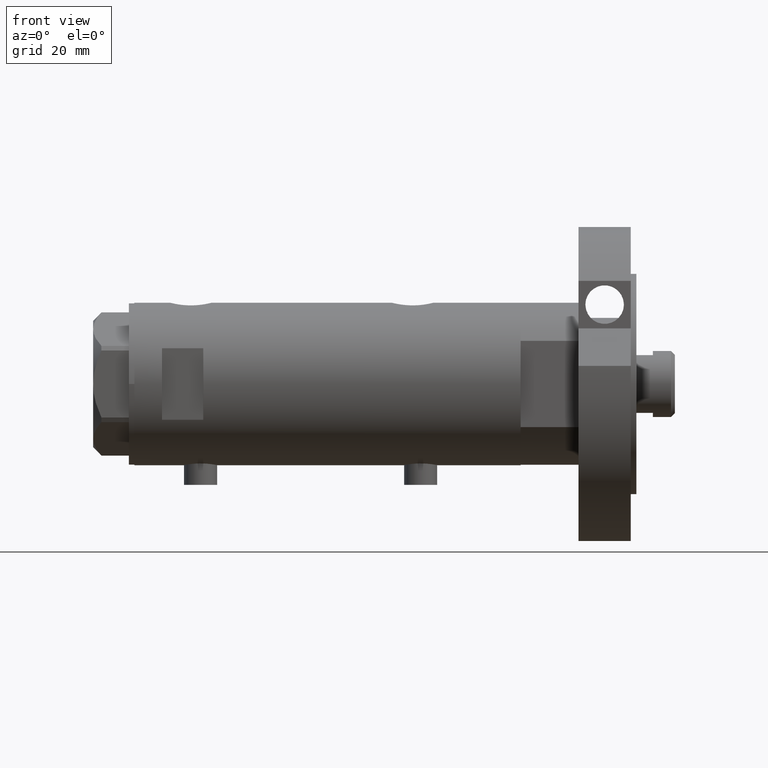
[diagram: clean part render]
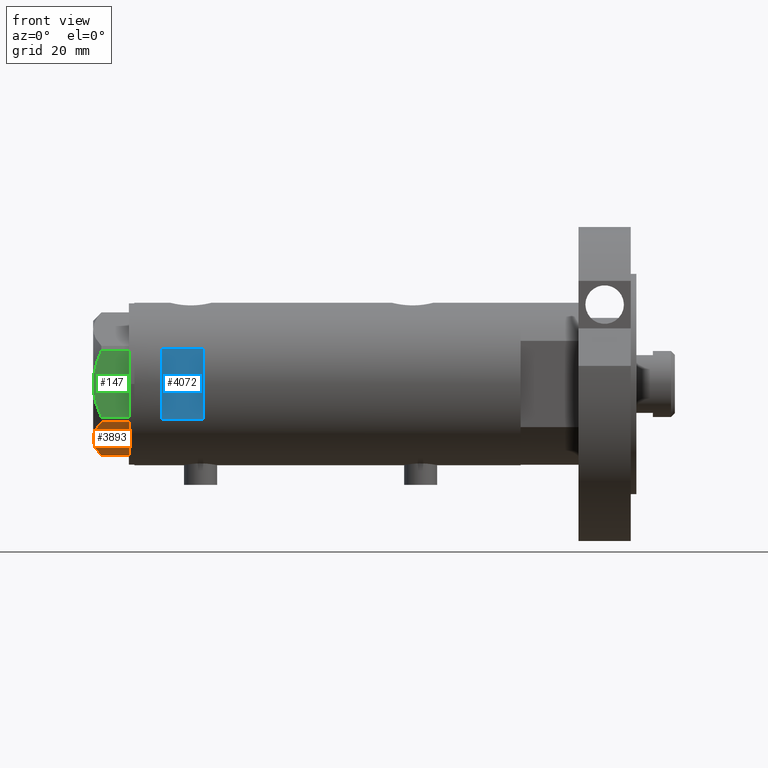
[diagram: same view with three faces highlighted in distinct colors, each labeled with its STEP entity id]
A machine part, front view with three faces highlighted in distinct colors.
Their STEP definitions:

[orange] entity #3893 — the highlighted planar face has unit normal (0, 0.5, 0.866).
#122 = CARTESIAN_POINT ( 'NONE',  ( -7.836767740116584058, 22.03355241838984924, 12.63731396715694899 ) ) ;
#184 = CARTESIAN_POINT ( 'NONE',  ( -11.04134848610939557, 20.18338686205100885, 13.00000000000010125 ) ) ;
#200 = VECTOR ( 'NONE', #262, 1000.000000000000000 ) ;
#262 = DIRECTION ( 'NONE',  ( 0.000000000000000000, 0.000000000000000000, 1.000000000000000000 ) ) ;
#331 = EDGE_CURVE ( 'NONE', #1766, #3645, #883, .T. ) ;
#351 = VERTEX_POINT ( 'NONE', #678 ) ;
#451 = CARTESIAN_POINT ( 'NONE',  ( -15.11535457301031649, 17.83125835109857249, 12.70765172847700519 ) ) ;
#576 = CARTESIAN_POINT ( 'NONE',  ( 0.000000000000000000, 26.55811238272274366, 0.000000000000000000 ) ) ;
#654 = CARTESIAN_POINT ( 'NONE',  ( -11.50000000000004441, 19.91858428704211548, 13.00000000000000000 ) ) ;
#678 = CARTESIAN_POINT ( 'NONE',  ( -22.03005154776141339, 13.83905619136132792, 0.000000000000000000 ) ) ;
#883 = B_SPLINE_CURVE_WITH_KNOTS ( 'NONE', 3,
 ( #2816, #5610, #451, #1830, #4211, #3289, #6117, #2879, #5182, #4301 ),
 .UNSPECIFIED., .F., .F.,
 ( 4, 2, 2, 2, 4 ),
 ( 0.01376519981810312397, 0.01998941321701587850, 0.02154546656674406757, 0.02310151991647225664, 0.02621362661592864171 ),
 .UNSPECIFIED. ) ;
#1011 = CARTESIAN_POINT ( 'NONE',  ( -2.626494320835643048, 25.04170517956326236, 10.87778242614345814 ) ) ;
#1033 = ORIENTED_EDGE ( 'NONE', *, *, #331, .F. ) ;
#1047 = VERTEX_POINT ( 'NONE', #1716 ) ;
#1235 = DIRECTION ( 'NONE',  ( 0.5000000000000008882, -0.8660254037844381525, 0.000000000000000000 ) ) ;
#1442 = EDGE_CURVE ( 'NONE', #3783, #1047, #2539, .T. ) ;
#1465 = CARTESIAN_POINT ( 'NONE',  ( -0.9699484522384476115, 25.99811238272281599, 9.983800287807556018 ) ) ;
#1566 = DIRECTION ( 'NONE',  ( 0.000000000000000000, 0.000000000000000000, -1.000000000000000000 ) ) ;
#1603 = LINE ( 'NONE', #4491, #200 ) ;
#1688 = CARTESIAN_POINT ( 'NONE',  ( 0.000000000000000000, 26.55811238272274366, 13.00000000000000000 ) ) ;
#1716 = CARTESIAN_POINT ( 'NONE',  ( -0.9699484522385893870, 25.99811238272273073, 0.000000000000000000 ) ) ;
#1766 = VERTEX_POINT ( 'NONE', #4344 ) ;
#1786 = EDGE_CURVE ( 'NONE', #3783, #1766, #4984, .T. ) ;
#1829 = VECTOR ( 'NONE', #1566, 1000.000000000000000 ) ;
#1830 = CARTESIAN_POINT ( 'NONE',  ( -17.32831362639716843, 16.55360584592005679, 12.04068176582934235 ) ) ;
#1897 = CARTESIAN_POINT ( 'NONE',  ( -0.9699484522384476115, 25.99811238272281599, 9.983800287807556018 ) ) ;
#2400 = CARTESIAN_POINT ( 'NONE',  ( -9.197898616902921987, 21.24770314027493612, 12.85271263895580596 ) ) ;
#2528 = CARTESIAN_POINT ( 'NONE',  ( -9.656518383329851574, 20.98291889467267879, 12.90784227772844162 ) ) ;
#2539 = LINE ( 'NONE', #5382, #1829 ) ;
#2650 = ORIENTED_EDGE ( 'NONE', *, *, #1442, .T. ) ;
#2665 = ORIENTED_EDGE ( 'NONE', *, *, #1786, .F. ) ;
#2816 = CARTESIAN_POINT ( 'NONE',  ( -11.50000000000004441, 19.91858428704211548, 13.00000000000000000 ) ) ;
#2879 = CARTESIAN_POINT ( 'NONE',  ( -20.35958612119325650, 14.80349985506242838, 10.84420102443839085 ) ) ;
#2886 = CARTESIAN_POINT ( 'NONE',  ( -10.58093321976963175, 20.44920774001128194, 12.98168640760950510 ) ) ;
#3032 = AXIS2_PLACEMENT_3D ( 'NONE', #1688, #1235, #4078 ) ;
#3289 = CARTESIAN_POINT ( 'NONE',  ( -18.64279229058393739, 15.79469123530780372, 11.57055225522972286 ) ) ;
#3436 = LINE ( 'NONE', #576, #5228 ) ;
#3473 = DIRECTION ( 'NONE',  ( -0.8660254037844380415, -0.5000000000000008882, 0.000000000000000000 ) ) ;
#3645 = VERTEX_POINT ( 'NONE', #5583 ) ;
#3783 = VERTEX_POINT ( 'NONE', #1897 ) ;
#3893 = ADVANCED_FACE ( 'NONE', ( #4050 ), #5940, .F. ) ;
#3908 = CARTESIAN_POINT ( 'NONE',  ( -6.946777556903628970, 22.54738849024396075, 12.42689993760377831 ) ) ;
#4050 = FACE_OUTER_BOUND ( 'NONE', #4700, .T. ) ;
#4078 = DIRECTION ( 'NONE',  ( 0.8660254037844381525, 0.5000000000000008882, 0.000000000000000000 ) ) ;
#4211 = CARTESIAN_POINT ( 'NONE',  ( -17.77001848220189828, 16.29858742851882525, 11.89212886775844424 ) ) ;
#4301 = CARTESIAN_POINT ( 'NONE',  ( -22.03005154776142760, 13.83905619136132259, 9.983800287807632401 ) ) ;
#4310 = CARTESIAN_POINT ( 'NONE',  ( -4.320186229909891651, 24.06385169993495055, 11.62937486882611005 ) ) ;
#4344 = CARTESIAN_POINT ( 'NONE',  ( -11.50000000000004441, 19.91858428704211548, 13.00000000000000000 ) ) ;
#4491 = CARTESIAN_POINT ( 'NONE',  ( -22.03005154776142049, 13.83905619136132614, 13.00000000000000000 ) ) ;
#4700 = EDGE_LOOP ( 'NONE', ( #5790, #4839, #1033, #2665, #2650 ) ) ;
#4839 = ORIENTED_EDGE ( 'NONE', *, *, #5691, .T. ) ;
#4910 = EDGE_CURVE ( 'NONE', #1047, #351, #3436, .T. ) ;
#4984 = B_SPLINE_CURVE_WITH_KNOTS ( 'NONE', 3,
 ( #1465, #1011, #4310, #3908, #122, #2400, #2528, #2886, #184, #654 ),
 .UNSPECIFIED., .F., .F.,
 ( 4, 2, 2, 2, 4 ),
 ( 0.001228959670438532553, 0.007497079744270828371, 0.01063113978118697921, 0.01219816979964505159, 0.01376519981810312397 ),
 .UNSPECIFIED. ) ;
#5182 = CARTESIAN_POINT ( 'NONE',  ( -21.20080365460317751, 14.31782268570117367, 10.43131750950939818 ) ) ;
#5228 = VECTOR ( 'NONE', #3473, 1000.000000000000227 ) ;
#5382 = CARTESIAN_POINT ( 'NONE',  ( -0.9699484522385897201, 25.99811238272273073, 13.00000000000000000 ) ) ;
#5583 = CARTESIAN_POINT ( 'NONE',  ( -22.03005154776142760, 13.83905619136132259, 9.983800287807632401 ) ) ;
#5610 = CARTESIAN_POINT ( 'NONE',  ( -13.32175508098984018, 18.86679350063497296, 13.00000000000009237 ) ) ;
#5691 = EDGE_CURVE ( 'NONE', #351, #3645, #1603, .T. ) ;
#5790 = ORIENTED_EDGE ( 'NONE', *, *, #4910, .T. ) ;
#5940 = PLANE ( 'NONE',  #3032 ) ;
#6117 = CARTESIAN_POINT ( 'NONE',  ( -19.07486218896993790, 15.54523556316591915, 11.39727285399141898 ) ) ;

[blue] entity #4072 — the highlighted planar face has unit normal (-0, 1, 0).
#440 = CARTESIAN_POINT ( 'NONE',  ( 12.96148139681573319, -26.49999999999998934, 45.09999999999998721 ) ) ;
#951 = VERTEX_POINT ( 'NONE', #5717 ) ;
#976 = VECTOR ( 'NONE', #1654, 1000.000000000000000 ) ;
#979 = CARTESIAN_POINT ( 'NONE',  ( -29.50000000000000355, -26.50000000000000355, 45.09999999999998721 ) ) ;
#1138 = VERTEX_POINT ( 'NONE', #2298 ) ;
#1385 = ORIENTED_EDGE ( 'NONE', *, *, #3543, .F. ) ;
#1415 = ORIENTED_EDGE ( 'NONE', *, *, #2915, .T. ) ;
#1451 = AXIS2_PLACEMENT_3D ( 'NONE', #3485, #5376, #3878 ) ;
#1654 = DIRECTION ( 'NONE',  ( 1.000000000000000000, -0.000000000000000000, -0.000000000000000000 ) ) ;
#1810 = ORIENTED_EDGE ( 'NONE', *, *, #5926, .T. ) ;
#1820 = VERTEX_POINT ( 'NONE', #2004 ) ;
#2004 = CARTESIAN_POINT ( 'NONE',  ( -12.96148139681573319, -26.49999999999998934, 60.09999999999998721 ) ) ;
#2005 = FACE_OUTER_BOUND ( 'NONE', #4598, .T. ) ;
#2027 = DIRECTION ( 'NONE',  ( 1.000000000000000000, -0.000000000000000000, -0.000000000000000000 ) ) ;
#2152 = VECTOR ( 'NONE', #3576, 1000.000000000000000 ) ;
#2290 = DIRECTION ( 'NONE',  ( 0.000000000000000000, 0.000000000000000000, 1.000000000000000000 ) ) ;
#2298 = CARTESIAN_POINT ( 'NONE',  ( -12.96148139681573319, -26.49999999999998934, 45.09999999999998721 ) ) ;
#2520 = EDGE_CURVE ( 'NONE', #1820, #1138, #3191, .T. ) ;
#2651 = CARTESIAN_POINT ( 'NONE',  ( -29.50000000000000355, -26.50000000000000355, 60.09999999999998721 ) ) ;
#2724 = LINE ( 'NONE', #3284, #5215 ) ;
#2752 = VECTOR ( 'NONE', #2027, 1000.000000000000000 ) ;
#2915 = EDGE_CURVE ( 'NONE', #5282, #951, #2724, .T. ) ;
#2947 = PLANE ( 'NONE',  #1451 ) ;
#3191 = LINE ( 'NONE', #4042, #2152 ) ;
#3284 = CARTESIAN_POINT ( 'NONE',  ( 12.96148139681573319, -26.49999999999999645, -70.09999999999999432 ) ) ;
#3485 = CARTESIAN_POINT ( 'NONE',  ( -29.50000000000000355, -26.50000000000000355, 60.09999999999998721 ) ) ;
#3543 = EDGE_CURVE ( 'NONE', #1820, #951, #4016, .T. ) ;
#3576 = DIRECTION ( 'NONE',  ( -0.000000000000000000, -0.000000000000000000, -1.000000000000000000 ) ) ;
#3878 = DIRECTION ( 'NONE',  ( 0.000000000000000000, -0.000000000000000000, 1.000000000000000000 ) ) ;
#4016 = LINE ( 'NONE', #2651, #976 ) ;
#4042 = CARTESIAN_POINT ( 'NONE',  ( -12.96148139681573319, -26.49999999999999645, -70.09999999999999432 ) ) ;
#4072 = ADVANCED_FACE ( 'NONE', ( #2005 ), #2947, .F. ) ;
#4598 = EDGE_LOOP ( 'NONE', ( #4744, #1810, #1415, #1385 ) ) ;
#4724 = LINE ( 'NONE', #979, #2752 ) ;
#4744 = ORIENTED_EDGE ( 'NONE', *, *, #2520, .T. ) ;
#5215 = VECTOR ( 'NONE', #2290, 1000.000000000000000 ) ;
#5282 = VERTEX_POINT ( 'NONE', #440 ) ;
#5376 = DIRECTION ( 'NONE',  ( 0.000000000000000000, 1.000000000000000000, 0.000000000000000000 ) ) ;
#5717 = CARTESIAN_POINT ( 'NONE',  ( 12.96148139681573319, -26.49999999999998934, 60.09999999999998721 ) ) ;
#5926 = EDGE_CURVE ( 'NONE', #1138, #5282, #4724, .T. ) ;

[green] entity #147 — the highlighted planar face has unit normal (-0, 1, -0).
#147 = ADVANCED_FACE ( 'NONE', ( #4444 ), #4878, .F. ) ;
#216 = CARTESIAN_POINT ( 'NONE',  ( -22.99999999999999645, 13.27905619136132032, 13.00000000000000000 ) ) ;
#266 = AXIS2_PLACEMENT_3D ( 'NONE', #216, #4946, #718 ) ;
#359 = CARTESIAN_POINT ( 'NONE',  ( -22.99999999999996447, 4.194757081058973824, 12.70300035152520302 ) ) ;
#718 = DIRECTION ( 'NONE',  ( -3.527173405730720929E-15, 1.000000000000000000, 0.000000000000000000 ) ) ;
#804 = CARTESIAN_POINT ( 'NONE',  ( -22.99999999999997158, 8.748091966971372813, 11.39681897828457302 ) ) ;
#908 = VERTEX_POINT ( 'NONE', #2868 ) ;
#1014 = CARTESIAN_POINT ( 'NONE',  ( -22.99999999999991473, -10.22738952213796715, 10.83247031367477398 ) ) ;
#1099 = B_SPLINE_CURVE_WITH_KNOTS ( 'NONE', 3,
 ( #4375, #1935, #3911, #2912, #5279, #3453, #2530, #5834, #5765, #5254, #1014, #1495, #2887, #4814 ),
 .UNSPECIFIED., .F., .F.,
 ( 4, 2, 2, 2, 2, 2, 4 ),
 ( 0.04777139595992690307, 0.04934380568070230455, 0.05091621540147769909, 0.05406103484302849510, 0.05720585428457929111, 0.05877826400535468565, 0.06035067372613008019 ),
 .UNSPECIFIED. ) ;
#1213 = B_SPLINE_CURVE_WITH_KNOTS ( 'NONE', 3,
 ( #5491, #3133, #5032, #804, #2674, #4562, #4095, #359, #3164, #4713 ),
 .UNSPECIFIED., .F., .F.,
 ( 4, 2, 2, 2, 4 ),
 ( 0.03516523594057417712, 0.03831677594541236381, 0.03989254594783145369, 0.04146831595025054357, 0.04777139595992690307 ),
 .UNSPECIFIED. ) ;
#1311 = EDGE_CURVE ( 'NONE', #5240, #908, #2380, .T. ) ;
#1444 = CARTESIAN_POINT ( 'NONE',  ( -22.99999999999990763, -12.15905619136148985, 13.00000000000000000 ) ) ;
#1495 = CARTESIAN_POINT ( 'NONE',  ( -22.99999999999990763, -11.20155944044818241, 10.42110268263274264 ) ) ;
#1522 = CARTESIAN_POINT ( 'NONE',  ( -22.99999999999990763, -12.15905619136148985, 0.000000000000000000 ) ) ;
#1697 = ORIENTED_EDGE ( 'NONE', *, *, #5652, .F. ) ;
#1844 = EDGE_LOOP ( 'NONE', ( #3613, #3213, #2998, #3116, #1697 ) ) ;
#1908 = VERTEX_POINT ( 'NONE', #4605 ) ;
#1935 = CARTESIAN_POINT ( 'NONE',  ( -22.99999999999995381, -0.5295934231897790889, 13.00000000000009237 ) ) ;
#2380 = LINE ( 'NONE', #1444, #5690 ) ;
#2481 = CARTESIAN_POINT ( 'NONE',  ( -22.99999999999999645, 13.27905619136132032, 0.000000000000000000 ) ) ;
#2530 = CARTESIAN_POINT ( 'NONE',  ( -22.99999999999993250, -5.228918809624134134, 12.43333703384985611 ) ) ;
#2555 = EDGE_CURVE ( 'NONE', #4662, #5761, #1213, .T. ) ;
#2674 = CARTESIAN_POINT ( 'NONE',  ( -22.99999999999997513, 8.246028007352348865, 11.57113180864690705 ) ) ;
#2868 = CARTESIAN_POINT ( 'NONE',  ( -22.99999999999990763, -12.15905619136149340, 9.983800287807616414 ) ) ;
#2887 = CARTESIAN_POINT ( 'NONE',  ( -22.99999999999991473, -11.68282849742337248, 10.20637235269541776 ) ) ;
#2912 = CARTESIAN_POINT ( 'NONE',  ( -22.99999999999993250, -2.119709279061928964, 12.90853521217319688 ) ) ;
#2962 = DIRECTION ( 'NONE',  ( 3.527173405730720141E-15, -1.000000000000000000, 0.000000000000000000 ) ) ;
#2998 = ORIENTED_EDGE ( 'NONE', *, *, #5160, .T. ) ;
#3116 = ORIENTED_EDGE ( 'NONE', *, *, #1311, .T. ) ;
#3133 = CARTESIAN_POINT ( 'NONE',  ( -22.99999999999998579, 11.20825071633914582, 10.42817330637845430 ) ) ;
#3164 = CARTESIAN_POINT ( 'NONE',  ( -22.99999999999996092, 2.122900714018063795, 13.00000000000009592 ) ) ;
#3213 = ORIENTED_EDGE ( 'NONE', *, *, #3650, .T. ) ;
#3275 = DIRECTION ( 'NONE',  ( 0.000000000000000000, 0.000000000000000000, 1.000000000000000000 ) ) ;
#3425 = LINE ( 'NONE', #2481, #4630 ) ;
#3453 = CARTESIAN_POINT ( 'NONE',  ( -22.99999999999992895, -4.203926054641974552, 12.64168122312250553 ) ) ;
#3549 = VECTOR ( 'NONE', #5561, 1000.000000000000000 ) ;
#3613 = ORIENTED_EDGE ( 'NONE', *, *, #2555, .F. ) ;
#3650 = EDGE_CURVE ( 'NONE', #4662, #1908, #6025, .T. ) ;
#3666 = CARTESIAN_POINT ( 'NONE',  ( -22.99999999999999289, 12.15905619136131754, 13.00000000000000000 ) ) ;
#3911 = CARTESIAN_POINT ( 'NONE',  ( -22.99999999999994316, -1.063773509315741217, 12.98143808360682883 ) ) ;
#4095 = CARTESIAN_POINT ( 'NONE',  ( -22.99999999999997513, 6.734330413511418811, 12.03938974125266981 ) ) ;
#4375 = CARTESIAN_POINT ( 'NONE',  ( -23.00000000000004619, -8.112498833180673323E-14, 13.00000000000000000 ) ) ;
#4444 = FACE_OUTER_BOUND ( 'NONE', #1844, .T. ) ;
#4562 = CARTESIAN_POINT ( 'NONE',  ( -22.99999999999997513, 7.239756182922193695, 11.89218606342285156 ) ) ;
#4605 = CARTESIAN_POINT ( 'NONE',  ( -22.99999999999999289, 12.15905619136131754, 0.000000000000000000 ) ) ;
#4630 = VECTOR ( 'NONE', #2962, 1000.000000000000000 ) ;
#4662 = VERTEX_POINT ( 'NONE', #5372 ) ;
#4713 = CARTESIAN_POINT ( 'NONE',  ( -23.00000000000004619, -8.112498833180673323E-14, 13.00000000000000000 ) ) ;
#4814 = CARTESIAN_POINT ( 'NONE',  ( -22.99999999999990763, -12.15905619136149340, 9.983800287807616414 ) ) ;
#4878 = PLANE ( 'NONE',  #266 ) ;
#4946 = DIRECTION ( 'NONE',  ( 1.000000000000000000, 3.527173405730720929E-15, -0.000000000000000000 ) ) ;
#5032 = CARTESIAN_POINT ( 'NONE',  ( -22.99999999999998579, 10.23890159976121517, 10.84081242829091707 ) ) ;
#5160 = EDGE_CURVE ( 'NONE', #1908, #5240, #3425, .T. ) ;
#5240 = VERTEX_POINT ( 'NONE', #1522 ) ;
#5254 = CARTESIAN_POINT ( 'NONE',  ( -22.99999999999991829, -9.734726261263313418, 11.02892470009565251 ) ) ;
#5279 = CARTESIAN_POINT ( 'NONE',  ( -22.99999999999994316, -2.643615312305168441, 12.85430456063626714 ) ) ;
#5372 = CARTESIAN_POINT ( 'NONE',  ( -22.99999999999999289, 12.15905619136132110, 9.983800287807621743 ) ) ;
#5491 = CARTESIAN_POINT ( 'NONE',  ( -22.99999999999999289, 12.15905619136132110, 9.983800287807621743 ) ) ;
#5561 = DIRECTION ( 'NONE',  ( 0.000000000000000000, 0.000000000000000000, -1.000000000000000000 ) ) ;
#5652 = EDGE_CURVE ( 'NONE', #5761, #908, #1099, .T. ) ;
#5690 = VECTOR ( 'NONE', #3275, 1000.000000000000000 ) ;
#5761 = VERTEX_POINT ( 'NONE', #5908 ) ;
#5765 = CARTESIAN_POINT ( 'NONE',  ( -22.99999999999992184, -8.252113629125281236, 11.58164206268022234 ) ) ;
#5834 = CARTESIAN_POINT ( 'NONE',  ( -22.99999999999992184, -7.253003311474400583, 11.90327681034764140 ) ) ;
#5908 = CARTESIAN_POINT ( 'NONE',  ( -23.00000000000004619, -8.112498833180673323E-14, 13.00000000000000000 ) ) ;
#6025 = LINE ( 'NONE', #3666, #3549 ) ;